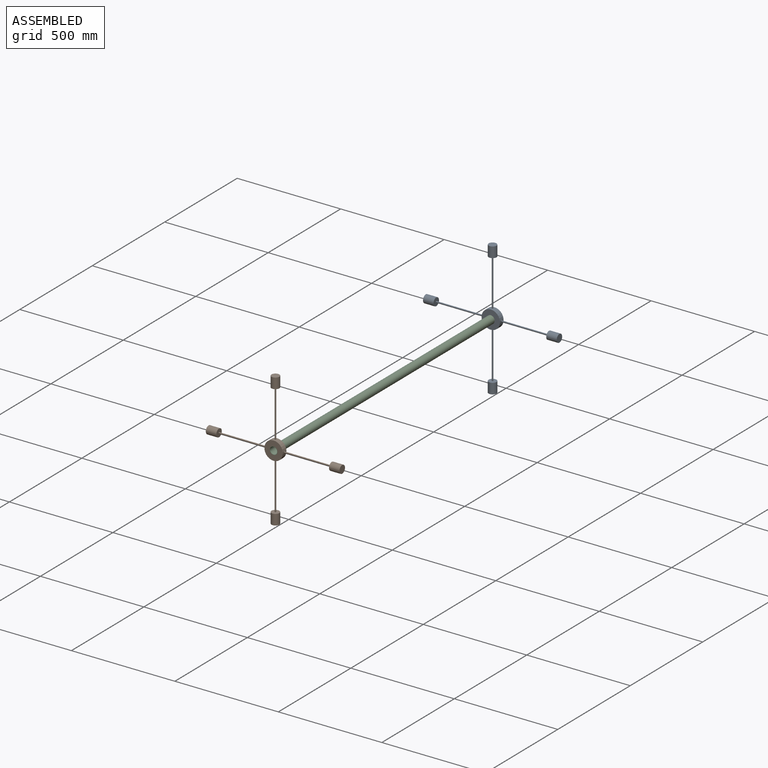
[diagram: assembled view]
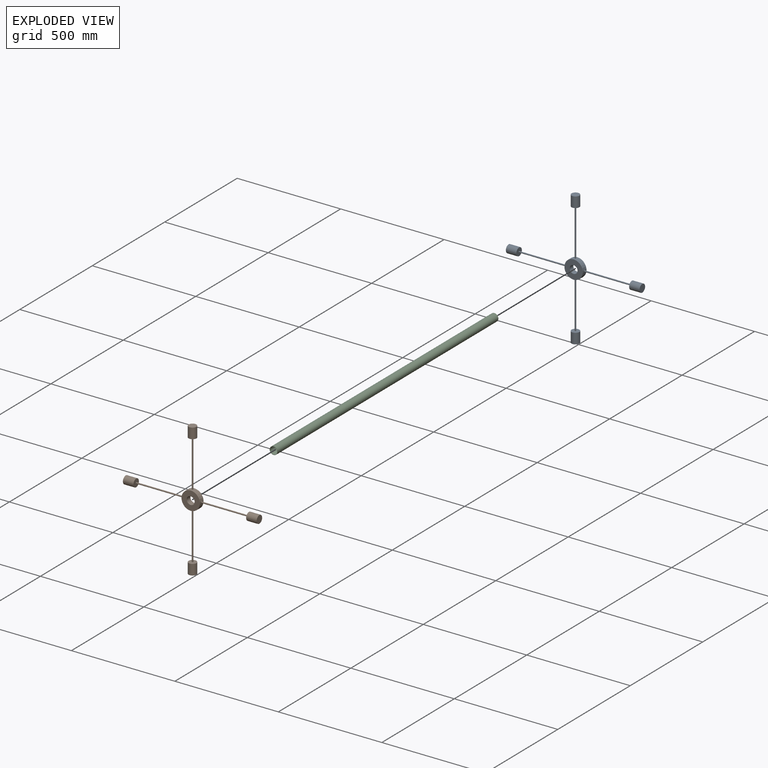
[diagram: exploded view]
GUIDED TOUR — MATED ASSEMBLY (Onshape document 7b8e04fcb15e8798d349feaf, AutoMate assembly 7b8e04fcb15e8798d349feaf_9389442a0d6fa7d040329d8c_af9e72a991aab72fccf90c88_default)

This assembly has 3 components, labeled P0..P2 below (a component is one placed occurrence of a part; the same part can appear more than once), held together by 2 mates. A mate is a constraint between two components; its type names the relative motion it leaves free:
  FASTENED — locks the two components together rigidly (no relative motion).
Axis/direction vectors are unit vectors and 'through' points are millimeter coordinates, both in the assembly's world frame.

MATES
  1. FASTENED "Fastened 1": P2 <-> P1, direction (0.000, -1.000, 0.000) through (11.81, -1621.62, 228.13) mm
  2. FASTENED "Fastened 2": P2 <-> P0, direction (0.000, 1.000, 0.000) through (11.81, -97.62, 228.13) mm

ASSEMBLY ORDER
  1. P2 — the base component [order verified]
  2. P1 [order verified]
  3. P0 [order verified]
Order-tag legend:
  [order verified] — this step's position reverses a verified removal order: the component was checked to insert without passing through the ones already placed.

Of the 3 components, 3 carry the full construction recipe — the FeatureScript program that regenerates the part's solid from scratch; the rest are supplied as boundary geometry only.
Each toured component is shown spotlighted twice — in the assembled view, then in the exploded view, where a leader line traces a displaced component back to its assembled socket (saturated green if recipe-attached, orange if geometry-only; every other component desaturated gray) — followed by its recipe or geometry summary and the mates that hold it.
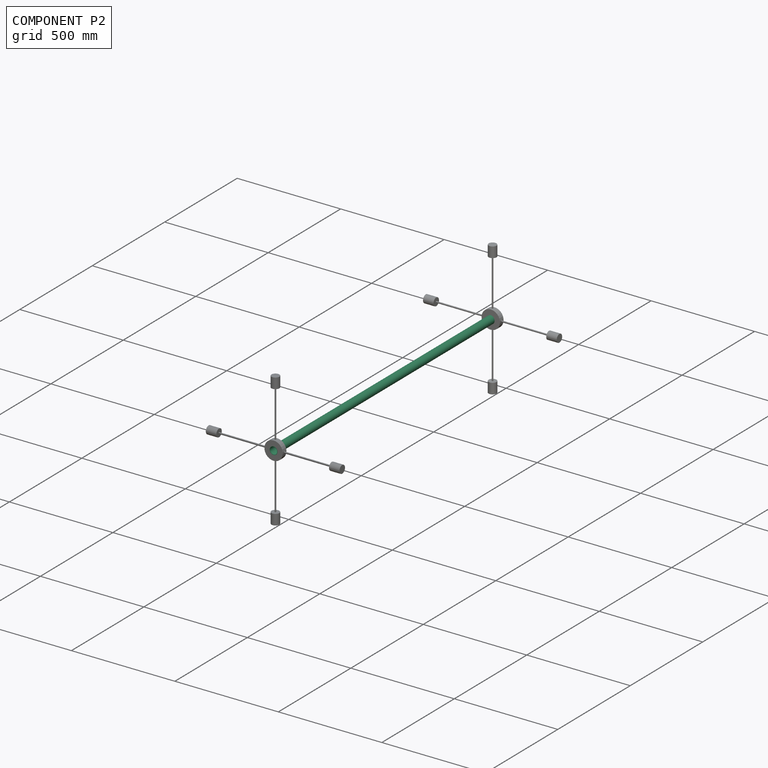
[diagram: component P2 — assembled]
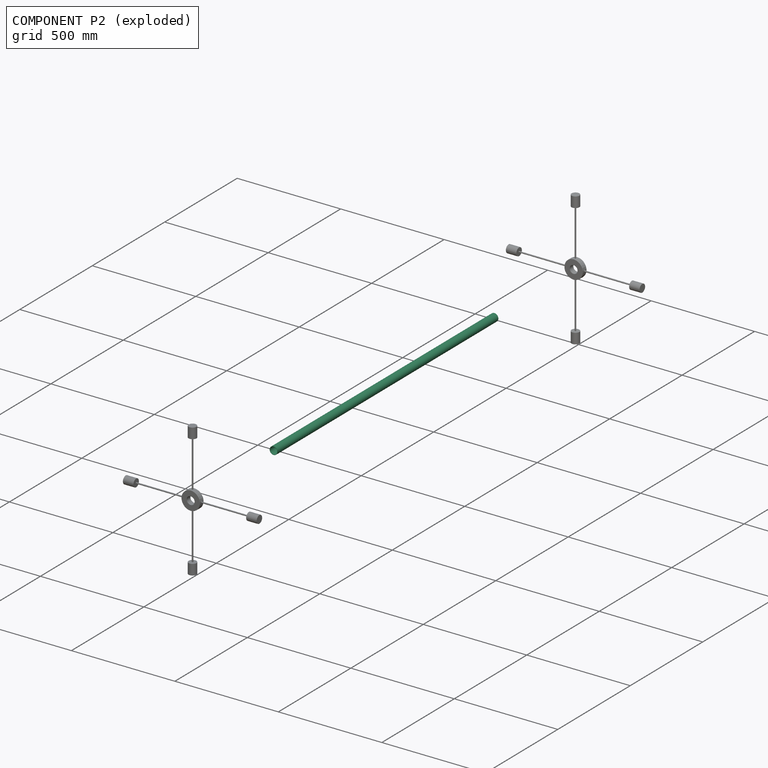
[diagram: component P2 — exploded]
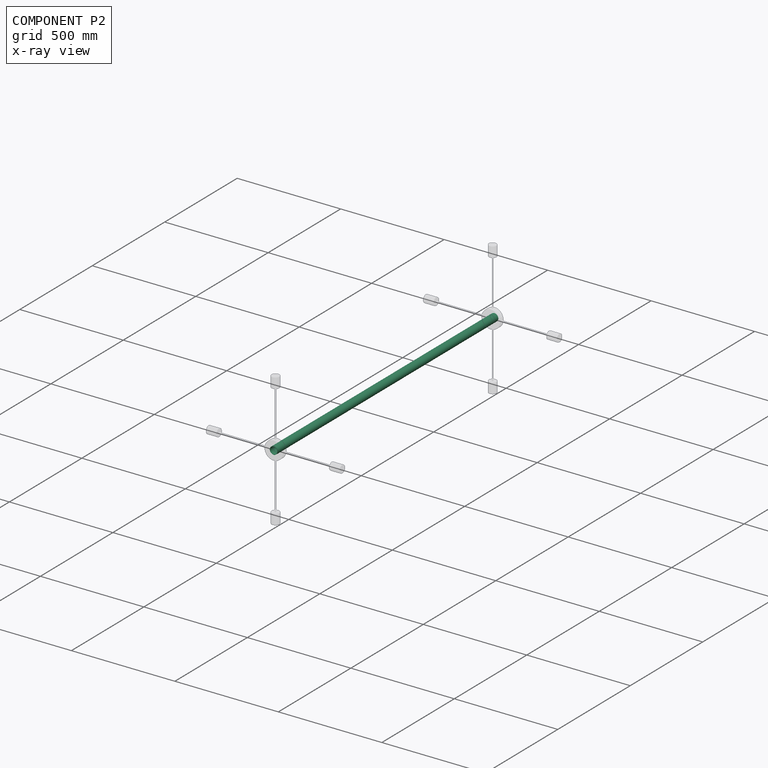
[diagram: component P2 — x-ray view]
COMPONENT P2 — recipe-attached (CADFS 00879570, mesh-verified: the recipe's output STEP matches this component's geometry to below the mesh-comparison resolution (tessellation chordal tolerance ~2.29 mm)).
Held by: FASTENED mate "Fastened 1" to P1; FASTENED mate "Fastened 2" to P0.
Construction recipe (FeatureScript — the CAD program that rebuilds this solid; sketch coordinates are in the units given by the * unit suffixes, e.g. mm):

FeatureScript 1511;
import(path : "onshape/std/geometry.fs", version : "1511.0");
import(path : "onshape/std/common.fs", version : "1511.0");
const mm = millimeter;
const VERTEX = EntityType.VERTEX;
const EDGE = EntityType.EDGE;
const FACE = EntityType.FACE;
const BODY = EntityType.BODY;
function v(x, y){return vector(x, y);}
function OD(order){return orderDisambiguation(order);}
function OSD(set){return originalSetDisambiguation(set);}
function TD(topology){return topologyDisambiguation(topology);}
function TDD(query){return trueDependencyDisambiguation(query);}
function sQuery(a, b, c) {return sketchEntityQuery(a, b, c);}

annotation { "Feature Type Name" : "Feature", "Feature Type Description" : "" }
export const myFeature = defineFeature(function(context is Context, id is Id, definition is map)
    precondition{}
    {
        {
            var Q0;
            Q0=qCreatedBy(makeId("Front.planeOp"),FACE);
            var sketch = newSketch(context, id + "F0", { "sketchPlane" : qUnion([Q0])});
            skCircle(sketch, "E0", {"center": v(0, 0) * mm, "radius": 17.46 * mm});
            skCircle(sketch, "E1", {"center": v(0, 0) * mm, "radius": 19.05 * mm});
            skSolve(sketch);
        }
        {
            var Q0;
            Q0=makeQuery(id+"F0.imprint","IMPRINT",FACE,{"disambiguationData":[TD([[makeQuery(id+"F0.imprint","IMPRINT",EDGE,{"derivedFrom":sQuery(id+"F0.wireOp",EDGE,"E0")}),-1.0]])]});
            extrude(context, id + "F1", {"entities" : qUnion([Q0]), "endBound" : BoundingType.SYMMETRIC, "depth" : 1524 * mm, "offsetDistance" : 25.4 * mm});
        }
    });
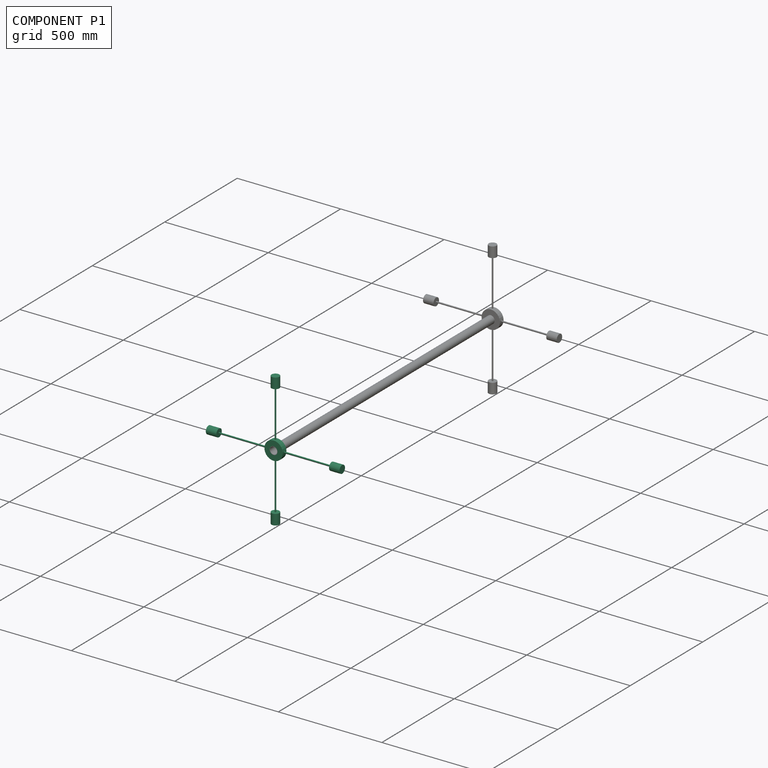
[diagram: component P1 — assembled]
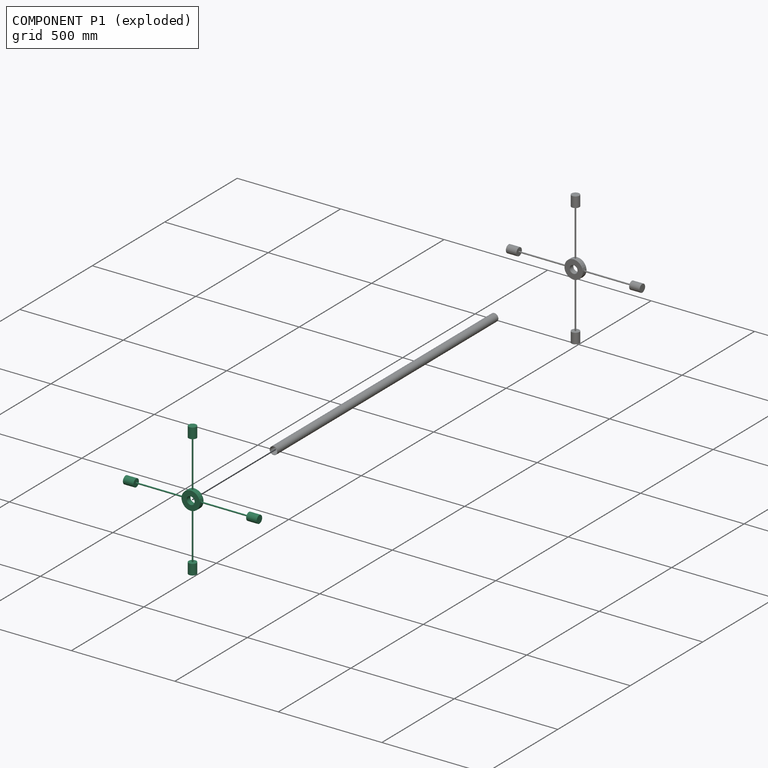
[diagram: component P1 — exploded]
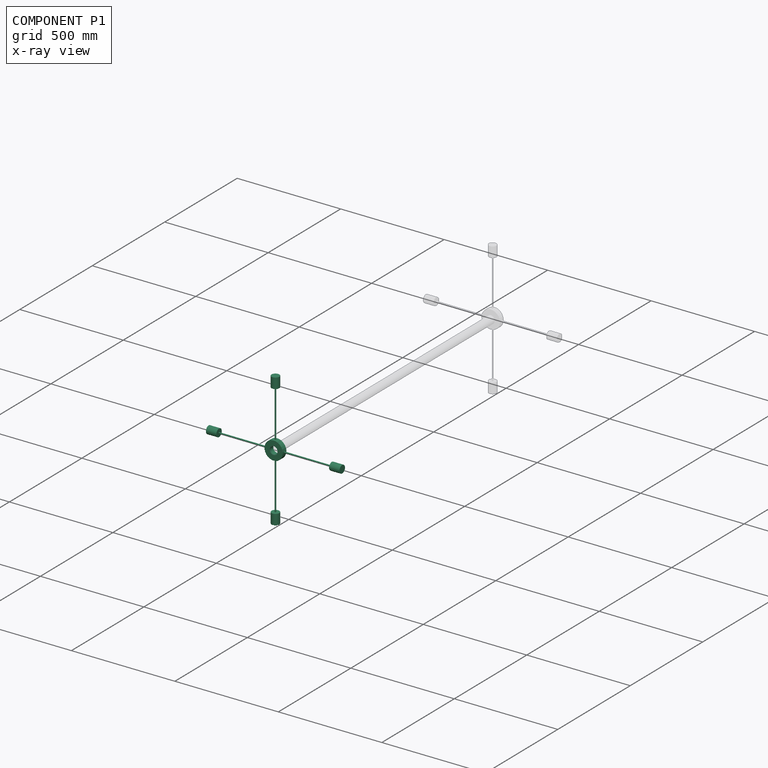
[diagram: component P1 — x-ray view]
COMPONENT P1 — same part as P0 (CADFS 00879571); its construction recipe is shown at P0.
Held by: FASTENED mate "Fastened 1" to P2.
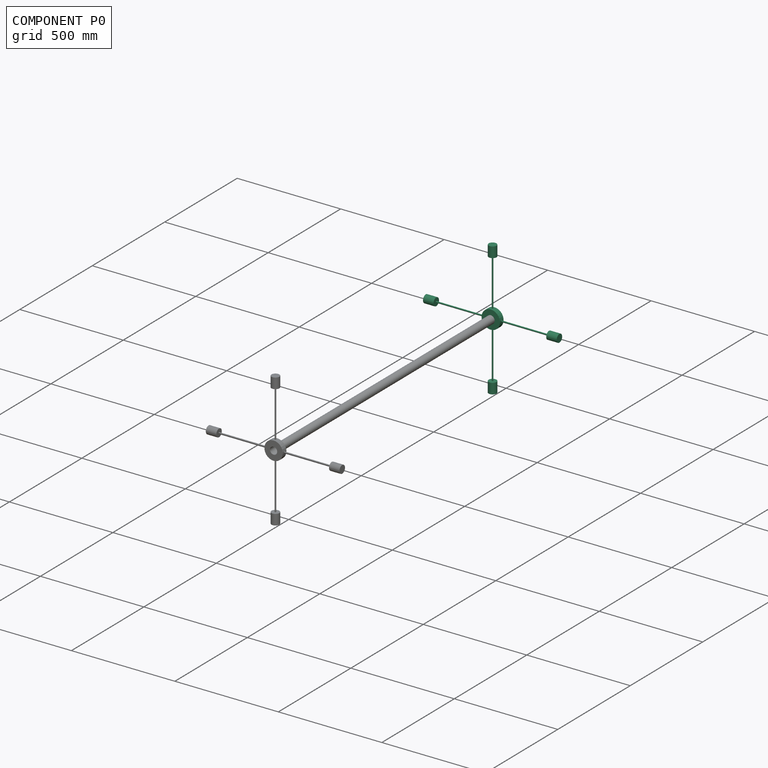
[diagram: component P0 — assembled]
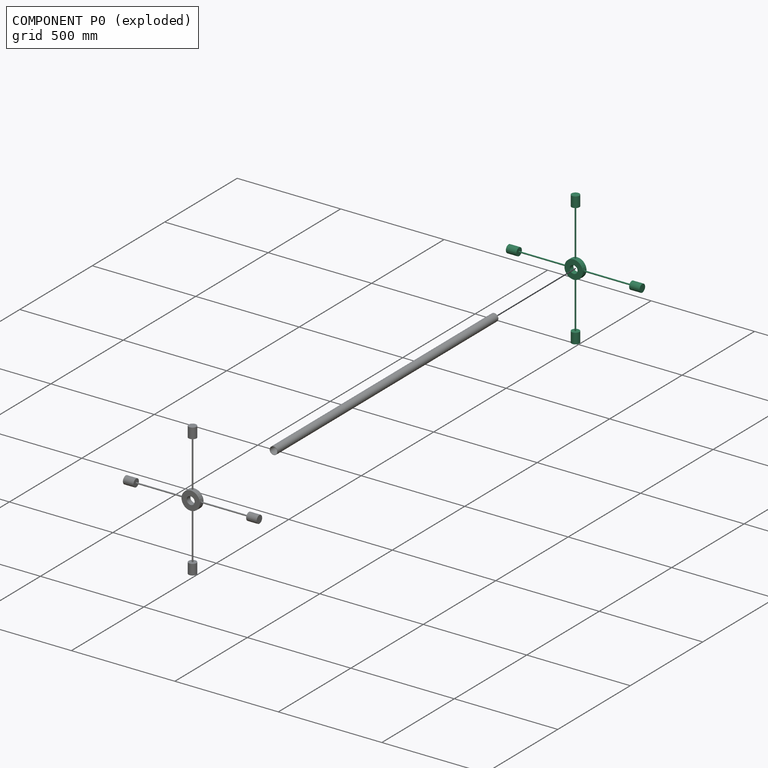
[diagram: component P0 — exploded]
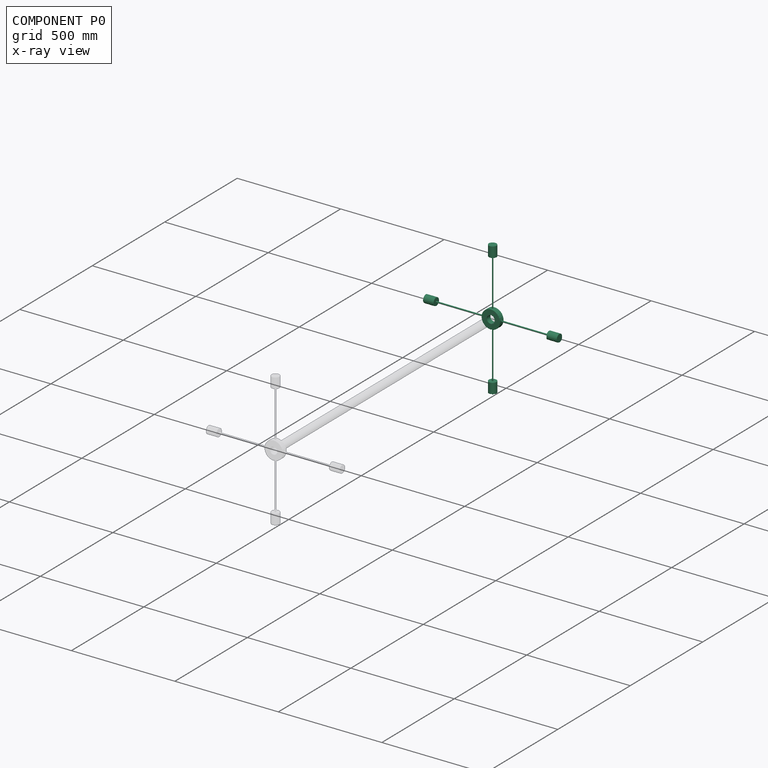
[diagram: component P0 — x-ray view]
COMPONENT P0 — recipe-attached (CADFS 00879571, mesh-verified: the recipe's output STEP matches this component's geometry to below the mesh-comparison resolution (tessellation chordal tolerance ~1.37 mm)).
Held by: FASTENED mate "Fastened 2" to P2.
Construction recipe (FeatureScript — the CAD program that rebuilds this solid; sketch coordinates are in the units given by the * unit suffixes, e.g. mm):

FeatureScript 1511;
import(path : "onshape/std/geometry.fs", version : "1511.0");
import(path : "onshape/std/common.fs", version : "1511.0");
const mm = millimeter;
const VERTEX = EntityType.VERTEX;
const EDGE = EntityType.EDGE;
const FACE = EntityType.FACE;
const BODY = EntityType.BODY;
function v(x, y){return vector(x, y);}
function OD(order){return orderDisambiguation(order);}
function OSD(set){return originalSetDisambiguation(set);}
function TD(topology){return topologyDisambiguation(topology);}
function TDD(query){return trueDependencyDisambiguation(query);}
function sQuery(a, b, c) {return sketchEntityQuery(a, b, c);}

annotation { "Feature Type Name" : "Feature", "Feature Type Description" : "" }
export const myFeature = defineFeature(function(context is Context, id is Id, definition is map)
    precondition{}
    {
        {
            var Q0;
            Q0=qCreatedBy(makeId("Front.planeOp"),FACE);
            var sketch = newSketch(context, id + "F0", { "sketchPlane" : qUnion([Q0])});
            skCircle(sketch, "E0", {"center": v(0, 0) * mm, "radius": 19.05 * mm});
            skCircle(sketch, "E1", {"center": v(0, 0) * mm, "radius": 44.45 * mm});
            skSolve(sketch);
        }
        {
            var Q0;
            Q0=qCreatedBy(makeId("Front.planeOp"),FACE);
            var sketch = newSketch(context, id + "F1", { "sketchPlane" : qUnion([Q0])});
            skLineSegment(sketch, "E2.bottom", {"start": v(-3.17, 43.69) * mm, "end": v(0, 43.69) * mm});
            skLineSegment(sketch, "E2.left", {"start": v(-3.17, 43.69) * mm, "end": v(-3.18, 287.98) * mm});
            skLineSegment(sketch, "E2.right", {"start": v(0, 43.69) * mm, "end": v(0, 272.29) * mm});
            skLineSegment(sketch, "E3.bottom", {"start": v(0, 272.29) * mm, "end": v(-19.05, 272.29) * mm});
            skLineSegment(sketch, "E3.top", {"start": v(0, 323.09) * mm, "end": v(-19.05, 323.09) * mm});
            skLineSegment(sketch, "E3.left", {"start": v(0, 272.29) * mm, "end": v(0, 323.09) * mm});
            skLineSegment(sketch, "E3.right", {"start": v(-19.05, 272.29) * mm, "end": v(-19.05, 323.09) * mm});
            skLineSegment(sketch, "E4.1.0", {"start": v(-43.69, 0) * mm, "end": v(-272.29, 0) * mm});
            skLineSegment(sketch, "E4.1.1", {"start": v(-43.69, -3.17) * mm, "end": v(-287.98, -3.18) * mm});
            skLineSegment(sketch, "E4.1.2", {"start": v(-43.69, -3.17) * mm, "end": v(-43.69, 0) * mm});
            skLineSegment(sketch, "E4.1.3", {"start": v(-272.29, 0) * mm, "end": v(-272.29, -19.05) * mm});
            skLineSegment(sketch, "E4.1.4", {"start": v(-272.29, 0) * mm, "end": v(-323.09, 0) * mm});
            skLineSegment(sketch, "E4.1.5", {"start": v(-323.09, 0) * mm, "end": v(-323.09, -19.05) * mm});
            skLineSegment(sketch, "E4.1.6", {"start": v(-272.29, -19.05) * mm, "end": v(-323.09, -19.05) * mm});
            skLineSegment(sketch, "E4.2.0", {"start": v(0, -43.69) * mm, "end": v(0, -272.29) * mm});
            skLineSegment(sketch, "E4.2.1", {"start": v(3.17, -43.69) * mm, "end": v(3.18, -287.98) * mm});
            skLineSegment(sketch, "E4.2.2", {"start": v(3.17, -43.69) * mm, "end": v(0, -43.69) * mm});
            skLineSegment(sketch, "E4.2.3", {"start": v(0, -272.29) * mm, "end": v(19.05, -272.29) * mm});
            skLineSegment(sketch, "E4.2.4", {"start": v(0, -272.29) * mm, "end": v(0, -323.09) * mm});
            skLineSegment(sketch, "E4.2.5", {"start": v(0, -323.09) * mm, "end": v(19.05, -323.09) * mm});
            skLineSegment(sketch, "E4.2.6", {"start": v(19.05, -272.29) * mm, "end": v(19.05, -323.09) * mm});
            skPoint(sketch, "E4.center", {"position": v(0, 0) * mm});
            skLineSegment(sketch, "E5.1.3.0", {"start": v(43.69, 0) * mm, "end": v(272.29, 0) * mm});
            skLineSegment(sketch, "E5.3.3.0", {"start": v(43.69, 3.17) * mm, "end": v(287.98, 3.18) * mm});
            skLineSegment(sketch, "E5.6.3.0", {"start": v(43.69, 3.17) * mm, "end": v(43.69, 0) * mm});
            skLineSegment(sketch, "E5.9.3.0", {"start": v(272.29, 0) * mm, "end": v(272.29, 19.05) * mm});
            skLineSegment(sketch, "E5.12.3.0", {"start": v(272.29, 0) * mm, "end": v(323.09, 0) * mm});
            skLineSegment(sketch, "E5.15.3.0", {"start": v(323.09, 0) * mm, "end": v(323.09, 19.05) * mm});
            skLineSegment(sketch, "E5.18.3.0", {"start": v(272.29, 19.05) * mm, "end": v(323.09, 19.05) * mm});
            skSolve(sketch);
        }
        {
            var Q0;
            Q0=makeQuery(id+"F0.imprint","IMPRINT",FACE,{"disambiguationData":[TD([[makeQuery(id+"F0.imprint","IMPRINT",EDGE,{"derivedFrom":sQuery(id+"F0.wireOp",EDGE,"E0")}),-1.0]])]});
            extrude(context, id + "F2", {"entities" : qUnion([Q0]), "endBound" : BoundingType.SYMMETRIC, "depth" : 25.4 * mm, "offsetDistance" : 25.4 * mm});
        }
        {
            var Q0;
            Q0=makeQuery(id+"F1.imprint","IMPRINT",FACE,{"disambiguationData":[TD([[makeQuery(id+"F1.imprint","IMPRINT",EDGE,{"derivedFrom":sQuery(id+"F1.wireOp",EDGE,"E2.bottom")}),1.0]])]});
            var Q1;
            Q1=makeQuery(id+"F1.imprint","IMPRINT",FACE,{"disambiguationData":[TD([[makeQuery(id+"F1.imprint","IMPRINT",EDGE,{"derivedFrom":sQuery(id+"F1.wireOp",EDGE,"E3.top")}),1.0]])]});
            var Q2;
            Q2=sQuery(id+"F1.wireOp",EDGE,"E2.right");
            revolve(context, id + "F3", {"operationType" : NewBodyOperationType.ADD, "surfaceOperationType" : NewSurfaceOperationType.NEW, "entities" : qUnion([Q0, Q1]), "axis" : qUnion([Q2]), "revolveType" : RevolveType.FULL});
        }
        {
            var Q0;
            {var subQ0=sQuery(id+"F1.wireOp",EDGE,"E5.1.3.0");Q0=makeQuery(id+"F1.imprint","IMPRINT",FACE,{"disambiguationData":[TD([[makeQuery(id+"F1.imprint","IMPRINT",EDGE,{"derivedFrom":subQ0}),1.0]])]});}
            var Q1;
            {var subQ0=sQuery(id+"F1.wireOp",EDGE,"E5.12.3.0");Q1=makeQuery(id+"F1.imprint","IMPRINT",FACE,{"disambiguationData":[TD([[makeQuery(id+"F1.imprint","IMPRINT",EDGE,{"derivedFrom":subQ0}),1.0]])]});}
            var Q2;
            Q2=sQuery(id+"F1.wireOp",EDGE,"E5.1.3.0");
            revolve(context, id + "F4", {"operationType" : NewBodyOperationType.ADD, "surfaceOperationType" : NewSurfaceOperationType.NEW, "entities" : qUnion([Q0, Q1]), "axis" : qUnion([Q2]), "revolveType" : RevolveType.FULL});
        }
        {
            var Q0;
            {var subQ0=sQuery(id+"F1.wireOp",EDGE,"E4.2.0");Q0=makeQuery(id+"F1.imprint","IMPRINT",FACE,{"disambiguationData":[TD([[makeQuery(id+"F1.imprint","IMPRINT",EDGE,{"derivedFrom":subQ0}),1.0]])]});}
            var Q1;
            {var subQ0=sQuery(id+"F1.wireOp",EDGE,"E4.2.4");Q1=makeQuery(id+"F1.imprint","IMPRINT",FACE,{"disambiguationData":[TD([[makeQuery(id+"F1.imprint","IMPRINT",EDGE,{"derivedFrom":subQ0}),1.0]])]});}
            var Q2;
            Q2=sQuery(id+"F1.wireOp",EDGE,"E4.2.4");
            revolve(context, id + "F5", {"operationType" : NewBodyOperationType.ADD, "surfaceOperationType" : NewSurfaceOperationType.NEW, "entities" : qUnion([Q0, Q1]), "axis" : qUnion([Q2]), "revolveType" : RevolveType.FULL});
        }
        {
            var Q0;
            {var subQ0=sQuery(id+"F1.wireOp",EDGE,"E4.1.4");Q0=makeQuery(id+"F1.imprint","IMPRINT",FACE,{"disambiguationData":[TD([[makeQuery(id+"F1.imprint","IMPRINT",EDGE,{"derivedFrom":subQ0}),1.0]])]});}
            var Q1;
            {var subQ0=sQuery(id+"F1.wireOp",EDGE,"E4.1.0");Q1=makeQuery(id+"F1.imprint","IMPRINT",FACE,{"disambiguationData":[TD([[makeQuery(id+"F1.imprint","IMPRINT",EDGE,{"derivedFrom":subQ0}),1.0]])]});}
            var Q2;
            Q2=sQuery(id+"F1.wireOp",EDGE,"E4.1.4");
            revolve(context, id + "F6", {"operationType" : NewBodyOperationType.ADD, "surfaceOperationType" : NewSurfaceOperationType.NEW, "entities" : qUnion([Q0, Q1]), "axis" : qUnion([Q2]), "revolveType" : RevolveType.FULL});
        }
    });
PROVENANCE & LICENSES
Assembly (occurrences, transforms, mates, per-part STEP geometry): AutoMate dataset, Zenodo record 7776208, CC0.
Construction recipes: CADFS (HuggingFace VladPyatov/CADFS, CC-BY-4.0, layered over the ABC dataset), FeatureScript reconstruction programs keyed by ABC model id.
Join: ABC meta listings map ABC model id -> Onshape documentId; within a shared document, parts are matched by geometric signature (bounding-box dims + volume at 0.1% relative tolerance, exact B-rep face/solid counts).
Verification: 3 of this assembly's 3 components carry a recipe attachment, and every attachment is mesh-verified: the CADFS STEP and the AutoMate member STEP were compared as meshes in their shared local frame (symmetric sampled-point-to-mesh distance); worst across the 3 attachments: below the mesh-comparison resolution (tessellation chordal tolerance ~2.29 mm) on a 1525 mm part.
Renders: orthographic iso camera (az 35 / el 25); the floor grid conveys scale (grid pitch printed in each image; no ruler). In the exploded view each component is displaced by its stored offset vector: the offsets alone carry the explosion direction (mate normal/axis signs are not orientation cues and do not encode it), and separation distances are assigned per mate-chain, not proportionally to assembly-order depth.
